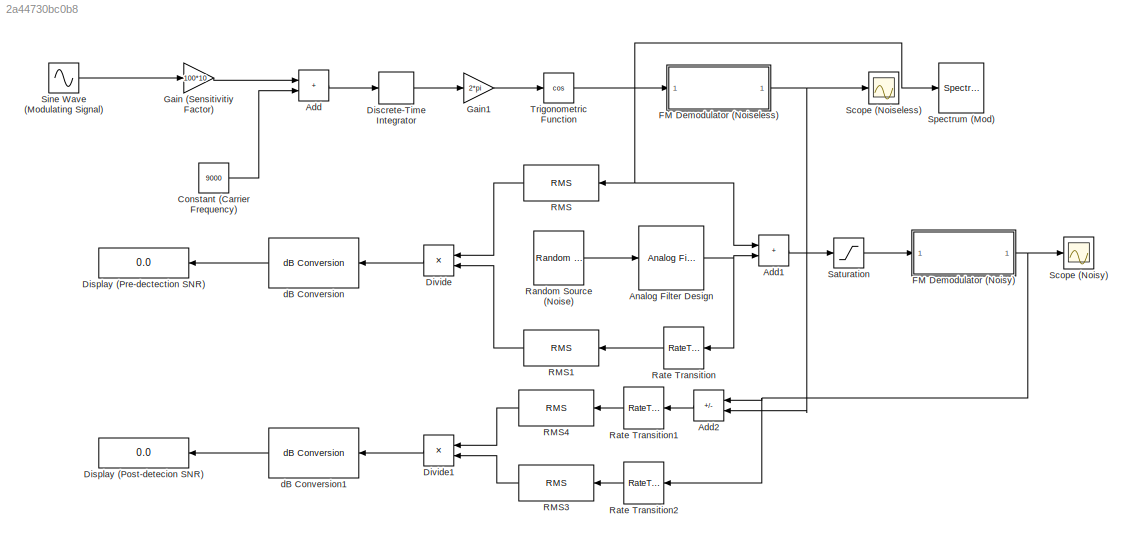
MODEL slx_2a44730bc0b8
KIND model
CONFIG AbsTol = auto
CONFIG EnableMultiTasking = off
CONFIG FixedStep = auto
CONFIG MaxStep = auto
CONFIG MinStep = auto
CONFIG RelTol = 1e-3
CONFIG SampleTimeConstraint = Unconstrained
CONFIG SolverName = VariableStepAuto
CONFIG StartTime = 0.0
CONFIG StopTime = 10.0
BLOCK [Sum] Add
  IconShape = rectangular
BLOCK [Sum] Add1
  IconShape = rectangular
BLOCK [Sum] Add2
  IconShape = rectangular
  Inputs = +-
BLOCK [Reference] Analog Filter Design  REF=dspfdesign/Analog
Filter Design
  SourceBlock = dspfdesign/Analog\nFilter Design
  SourceType = Analog Filter Design
BLOCK [Constant] Constant (Carrier Frequency)
  Value = 9000
BLOCK [DiscreteIntegrator] Discrete-Time Integrator
  ICPrevOutput = DiscIntNeverNeededParam
  ICPrevScaledInput = DiscIntNeverNeededParam
  InitialConditionSetting = Auto
  SampleTime = 1e-5
BLOCK [Display] Display (Post-detecion SNR)
  Decimation = 1
BLOCK [Display] Display (Pre-dectection SNR)
  Decimation = 1
BLOCK [Product] Divide
  Inputs = */
BLOCK [Product] Divide1
  Inputs = /*
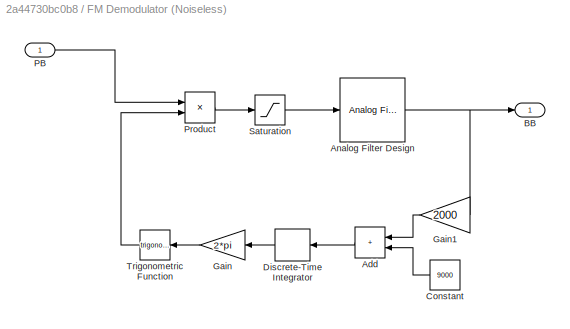
BLOCK [SubSystem] FM Demodulator (Noiseless)
BLOCK [Sum] FM Demodulator (Noiseless)/Add
  IconShape = rectangular
BLOCK [Reference] FM Demodulator (Noiseless)/Analog Filter Design  REF=dspfdesign/Analog
Filter Design
  SourceBlock = dspfdesign/Analog\nFilter Design
  SourceType = Analog Filter Design
BLOCK [Outport] FM Demodulator (Noiseless)/BB
BLOCK [Constant] FM Demodulator (Noiseless)/Constant
  Value = 9000
BLOCK [DiscreteIntegrator] FM Demodulator (Noiseless)/Discrete-Time Integrator
  ICPrevOutput = DiscIntNeverNeededParam
  ICPrevScaledInput = DiscIntNeverNeededParam
  InitialConditionSetting = Auto
  SampleTime = 1e-5
BLOCK [Gain] FM Demodulator (Noiseless)/Gain
  Gain = 2*pi
BLOCK [Gain] FM Demodulator (Noiseless)/Gain1
  Gain = 2000
BLOCK [Inport] FM Demodulator (Noiseless)/PB
BLOCK [Product] FM Demodulator (Noiseless)/Product
BLOCK [Saturate] FM Demodulator (Noiseless)/Saturation
BLOCK [Trigonometry] FM Demodulator (Noiseless)/Trigonometric Function
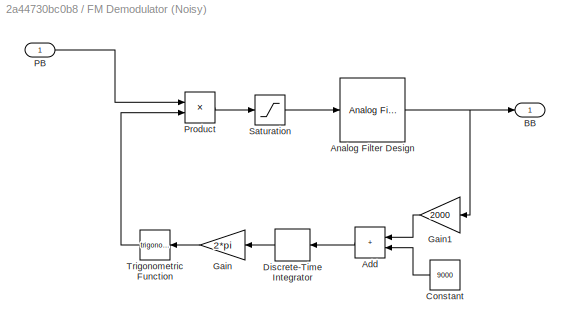
BLOCK [SubSystem] FM Demodulator (Noisy)
BLOCK [Sum] FM Demodulator (Noisy)/Add
  IconShape = rectangular
BLOCK [Reference] FM Demodulator (Noisy)/Analog Filter Design  REF=dspfdesign/Analog
Filter Design
  SourceBlock = dspfdesign/Analog\nFilter Design
  SourceType = Analog Filter Design
BLOCK [Outport] FM Demodulator (Noisy)/BB
BLOCK [Constant] FM Demodulator (Noisy)/Constant
  Value = 9000
BLOCK [DiscreteIntegrator] FM Demodulator (Noisy)/Discrete-Time Integrator
  ICPrevOutput = DiscIntNeverNeededParam
  ICPrevScaledInput = DiscIntNeverNeededParam
  InitialConditionSetting = Auto
  SampleTime = 1e-5
BLOCK [Gain] FM Demodulator (Noisy)/Gain
  Gain = 2*pi
BLOCK [Gain] FM Demodulator (Noisy)/Gain1
  Gain = 2000
BLOCK [Inport] FM Demodulator (Noisy)/PB
BLOCK [Product] FM Demodulator (Noisy)/Product
BLOCK [Saturate] FM Demodulator (Noisy)/Saturation
BLOCK [Trigonometry] FM Demodulator (Noisy)/Trigonometric Function
BLOCK [Gain] Gain (Sensitivitiy Factor)
  Gain = 100*10
BLOCK [Gain] Gain1
  Gain = 2*pi
BLOCK [Reference] RMS  REF=dspstat3/RMS
  SourceBlock = dspstat3/RMS
  SourceType = RMS
  UserDataPersistent = on
BLOCK [Reference] RMS1  REF=dspstat3/RMS
  SourceBlock = dspstat3/RMS
  SourceType = RMS
  UserDataPersistent = on
BLOCK [Reference] RMS3  REF=dspstat3/RMS
  SourceBlock = dspstat3/RMS
  SourceType = RMS
  UserDataPersistent = on
BLOCK [Reference] RMS4  REF=dspstat3/RMS
  SourceBlock = dspstat3/RMS
  SourceType = RMS
  UserDataPersistent = on
BLOCK [Reference] Random Source (Noise)  REF=dspsrcs4/Random
Source
  SourceBlock = dspsrcs4/Random\nSource
  SourceType = dsp.simulink.RandomSource
BLOCK [RateTransition] Rate Transition
  OutPortSampleTime = 1e-5
BLOCK [RateTransition] Rate Transition1
  OutPortSampleTime = 1e-5
BLOCK [RateTransition] Rate Transition2
  OutPortSampleTime = 1e-5
BLOCK [Saturate] Saturation
  LowerLimit = -1
  UpperLimit = 1
BLOCK [Scope] Scope (Noiseless)
  Floating = off
  NumInputPorts = 1
  ScopeSpecificationString = Simulink.scopes.TimeScopeBlockCfg('CurrentConfiguration', extmgr.ConfigurationSet(extmgr.Configuration('Core','General UI',true),extmgr.Configuration('Core','Source UI',true),extmgr.Configuration('Sources','WiredSimulink',true),extmgr.Configuration('Visuals','Time Domain',true,'SerializedDisplays',{struct('MinYLimReal','-0.10657','MaxYLimReal','0.10261','YLabelReal','','MinYLimMag','0.00000','MaxY...<+1435ch>
BLOCK [Scope] Scope (Noisy)
  Floating = off
  NumInputPorts = 1
  ScopeSpecificationString = Simulink.scopes.TimeScopeBlockCfg('CurrentConfiguration', extmgr.ConfigurationSet(extmgr.Configuration('Core','General UI',true),extmgr.Configuration('Core','Source UI',true),extmgr.Configuration('Sources','WiredSimulink',true,'DataLoggingVariableName','ScopeData1'),extmgr.Configuration('Visuals','Time Domain',true,'SerializedDisplays',{struct('MinYLimReal','-0.55741','MaxYLimReal','0.56617','YLab...<+1545ch>
BLOCK [Sin] Sine Wave (Modulating Signal)
  SampleTime = 1e-5
  Samples = 1000
  SineType = Sample based
BLOCK [SpectrumAnalyzer] Spectrum (Mod)
  CenterFrequency = 24999.999999999996
  GraphicalSettings = {"GraphicalSettings":{"Style":{"BackgroundColor":[0.12941176470588237,0.12941176470588237,0.12941176470588237],"AxesColor":[0.07058823529411765,0.07058823529411765,0.07058823529411765],"LabelsColor":[0.8509803921568627,0.8509803921568627,0.8509803921568627],"PreserveColors":false,"Visible":[true],"LineStyle":["-"],"LineColor":[[1,0.9098039215686274,0.39215686274509803]],"LineWidth":[1.5],"Marker":...<+1068ch>
  PlotAsTwoSidedSpectrum = off
  RBW = 1
  RBWSource = Property
  ScopeFrameLocation = window
  SelectedToolstripTab = spectrumAnalyzerToolstrip.channelMeasurementsTab
  ShowLegend = on
  Span = 49999.99999999999
  StartFrequency = 0
  StopFrequency = 49999.99999999999
  Visible = on
  WasSavedAsWebScope = on
  WindowPosition = [1.000000,49.000000,1536.000000,792.000000,]
  YLimits = [-255.4566928823593,82.82456219997775]
BLOCK [Trigonometry] Trigonometric Function
  Operator = cos
BLOCK [Reference] dB Conversion  REF=dspmathops/dB Conversion
  LibrarySourceBlock = commutil2/dB Conversion
  SourceBlock = dspmathops/dB Conversion
  SourceType = dB Conversion
BLOCK [Reference] dB Conversion1  REF=dspmathops/dB Conversion
  LibrarySourceBlock = commutil2/dB Conversion
  SourceBlock = dspmathops/dB Conversion
  SourceType = dB Conversion
LINE Add1:1 -> Saturation:1
LINE Add2:1 -> Rate Transition1:1
LINE Add:1 -> Discrete-Time Integrator:1
NET Analog Filter Design:1 -> Add1:2, Rate Transition:1
LINE Constant (Carrier Frequency):1 -> Add:2
LINE Discrete-Time Integrator:1 -> Gain1:1
LINE Divide1:1 -> dB Conversion1:1
LINE Divide:1 -> dB Conversion:1
LINE FM Demodulator (Noiseless)/Add:1 -> FM Demodulator (Noiseless)/Discrete-Time Integrator:1
NET FM Demodulator (Noiseless)/Analog Filter Design:1 -> FM Demodulator (Noiseless)/BB:1, FM Demodulator (Noiseless)/Gain1:1
LINE FM Demodulator (Noiseless)/Constant:1 -> FM Demodulator (Noiseless)/Add:2
LINE FM Demodulator (Noiseless)/Discrete-Time Integrator:1 -> FM Demodulator (Noiseless)/Gain:1
LINE FM Demodulator (Noiseless)/Gain1:1 -> FM Demodulator (Noiseless)/Add:1
LINE FM Demodulator (Noiseless)/Gain:1 -> FM Demodulator (Noiseless)/Trigonometric Function:1
LINE FM Demodulator (Noiseless)/PB:1 -> FM Demodulator (Noiseless)/Product:1
LINE FM Demodulator (Noiseless)/Product:1 -> FM Demodulator (Noiseless)/Saturation:1
LINE FM Demodulator (Noiseless)/Saturation:1 -> FM Demodulator (Noiseless)/Analog Filter Design:1
LINE FM Demodulator (Noiseless)/Trigonometric Function:1 -> FM Demodulator (Noiseless)/Product:2
NET FM Demodulator (Noiseless):1 -> Add2:2, Scope (Noiseless):1
LINE FM Demodulator (Noisy)/Add:1 -> FM Demodulator (Noisy)/Discrete-Time Integrator:1
NET FM Demodulator (Noisy)/Analog Filter Design:1 -> FM Demodulator (Noisy)/BB:1, FM Demodulator (Noisy)/Gain1:1
LINE FM Demodulator (Noisy)/Constant:1 -> FM Demodulator (Noisy)/Add:2
LINE FM Demodulator (Noisy)/Discrete-Time Integrator:1 -> FM Demodulator (Noisy)/Gain:1
LINE FM Demodulator (Noisy)/Gain1:1 -> FM Demodulator (Noisy)/Add:1
LINE FM Demodulator (Noisy)/Gain:1 -> FM Demodulator (Noisy)/Trigonometric Function:1
LINE FM Demodulator (Noisy)/PB:1 -> FM Demodulator (Noisy)/Product:1
LINE FM Demodulator (Noisy)/Product:1 -> FM Demodulator (Noisy)/Saturation:1
LINE FM Demodulator (Noisy)/Saturation:1 -> FM Demodulator (Noisy)/Analog Filter Design:1
LINE FM Demodulator (Noisy)/Trigonometric Function:1 -> FM Demodulator (Noisy)/Product:2
NET FM Demodulator (Noisy):1 -> Add2:1, Rate Transition2:1, Scope (Noisy):1
LINE Gain (Sensitivitiy Factor):1 -> Add:1
LINE Gain1:1 -> Trigonometric Function:1
LINE RMS1:1 -> Divide:2
LINE RMS3:1 -> Divide1:2
LINE RMS4:1 -> Divide1:1
LINE RMS:1 -> Divide:1
LINE Random Source (Noise):1 -> Analog Filter Design:1
LINE Rate Transition1:1 -> RMS4:1
LINE Rate Transition2:1 -> RMS3:1
LINE Rate Transition:1 -> RMS1:1
LINE Saturation:1 -> FM Demodulator (Noisy):1
LINE Sine Wave (Modulating Signal):1 -> Gain (Sensitivitiy Factor):1
NET Trigonometric Function:1 -> Add1:1, FM Demodulator (Noiseless):1, RMS:1, Spectrum (Mod):1
LINE dB Conversion1:1 -> Display (Post-detecion SNR):1
LINE dB Conversion:1 -> Display (Pre-dectection SNR):1
note: NET lines group one-source signal fan-out (src -> all destinations, sorted); 1:1 wires keep LINE
